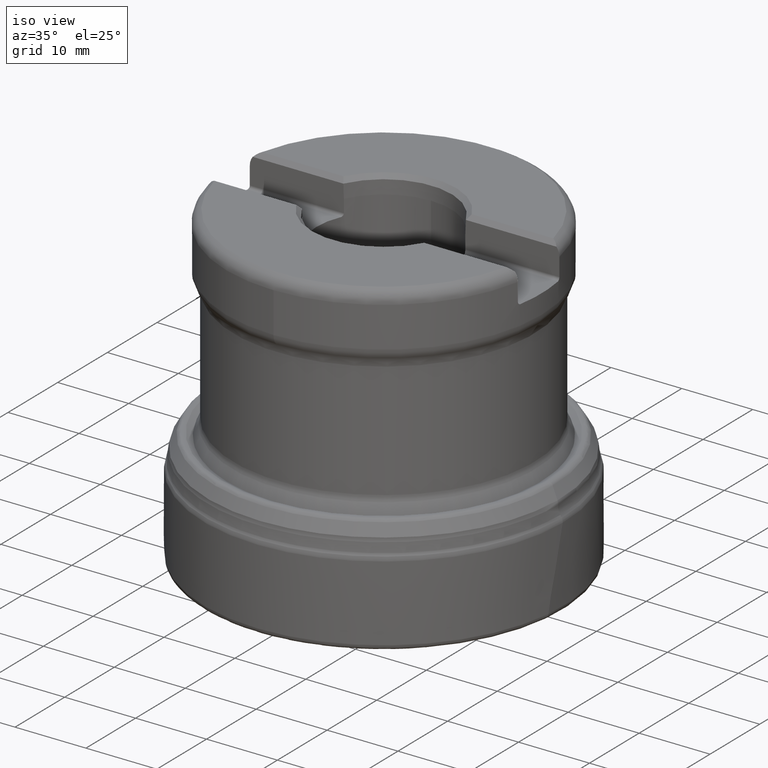
[diagram: clean part render]
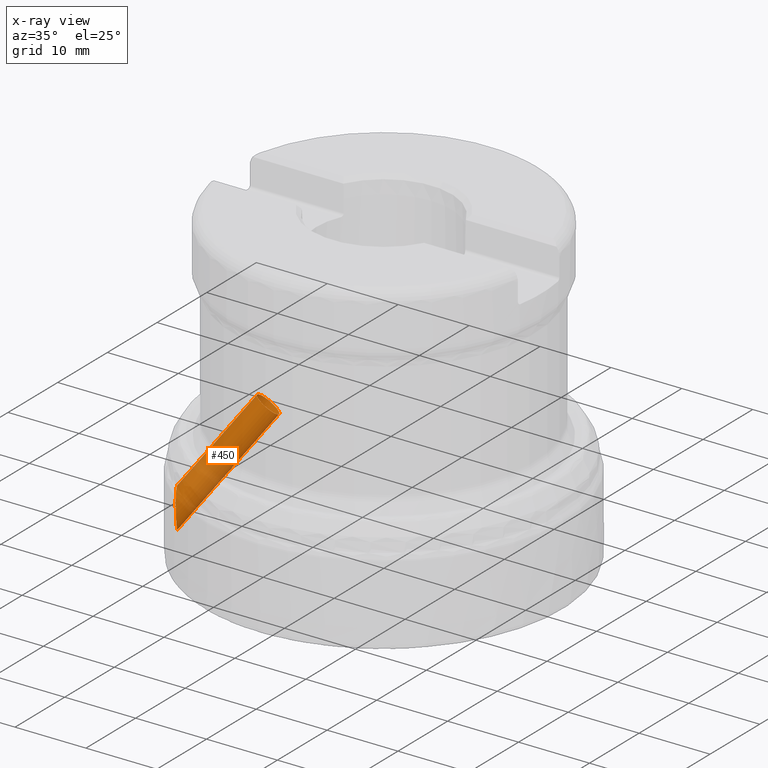
[diagram: x-ray — body ghosted, one internal face saturated and labeled with its STEP entity id]
A machine part, iso view, then the same camera in x-ray: the body is ghosted and one INTERNAL B-rep face — a face not visible from any outside direction — is saturated and labeled: STEP entity #450.
In plain terms, the highlighted cylindrical surface (bore or boss wall) has radius 1.7 mm, axis along (-0.4713, -0.446, -0.7609).
Its self-contained STEP definition (entity closure, byte-faithful):
#201=CYLINDRICAL_SURFACE('',#1563,1.7);
#325=FACE_BOUND('',#623,.T.);
#326=FACE_BOUND('',#624,.T.);
#450=ADVANCED_FACE('',(#325,#326),#201,.F.);
#623=EDGE_LOOP('',(#925));
#624=EDGE_LOOP('',(#926));
#925=ORIENTED_EDGE('',*,*,#1186,.T.);
#926=ORIENTED_EDGE('',*,*,#1259,.T.);
#1057=VERTEX_POINT('',#2911);
#1102=VERTEX_POINT('',#3248);
#1186=EDGE_CURVE('',#1057,#1057,#1409,.T.);
#1259=EDGE_CURVE('',#1102,#1102,#1339,.T.);
#1339=CIRCLE('',#1562,1.7);
#1409=B_SPLINE_CURVE_WITH_KNOTS('',3,(#2850,#2851,#2852,#2853,#2854,#2855,
#2856,#2857,#2858,#2859,#2860,#2861,#2862,#2863,#2864,#2865,#2866,#2867,
#2868,#2869,#2870,#2871,#2872,#2873,#2874,#2875,#2876,#2877,#2878,#2879,
#2880,#2881,#2882,#2883,#2884,#2885,#2886,#2887,#2888,#2889,#2890,#2891,
#2892,#2893,#2894,#2895,#2896,#2897,#2898,#2899,#2900,#2901,#2902,#2903,
#2904,#2905,#2906,#2907,#2908,#2909,#2910),.UNSPECIFIED.,.T.,.F.,(1,3,3,
3,3,3,3,3,3,3,3,3,3,3,3,3,3,3,3,3,3,3,1),(-0.0237716295053002,0.,0.0633650761916381,
0.158680737001566,0.255943375832103,0.303049578602929,0.341038622517681,
0.369706114952776,0.398572265601306,0.424937074326709,0.462591885973799,
0.518042867046791,0.599537895591249,0.683330673438352,0.75726649274674,
0.808162056744346,0.846389264061187,0.877449966051393,0.908698256938821,
0.937359074926972,0.9762283704947,1.,1.06336507619164),.UNSPECIFIED.);
#1562=AXIS2_PLACEMENT_3D('',#3247,#1851,#1852);
#1563=AXIS2_PLACEMENT_3D('',#3249,#1853,#1854);
#1851=DIRECTION('',(0.471321701591363,0.445979734865029,0.760892850340139));
#1852=DIRECTION('',(-0.609280610887265,-0.459125871983205,0.646514169119675));
#1853=DIRECTION('',(-0.471321701591363,-0.445979734865029,-0.760892850340139));
#1854=DIRECTION('',(-0.609280610887265,-0.459125871983204,0.646514169119675));
#2850=CARTESIAN_POINT('',(-22.3231330102042,-9.2575794338574,6.27598752751829));
#2851=CARTESIAN_POINT('',(-22.3443086111587,-9.17381223667797,6.00228128106467));
#2852=CARTESIAN_POINT('',(-22.345536209913,-9.13527346411715,5.71121836226466));
#2853=CARTESIAN_POINT('',(-22.333524029671,-9.1299738608903,5.42449884692209));
#2854=CARTESIAN_POINT('',(-22.3155389201931,-9.12203908616135,4.99521109324417));
#2855=CARTESIAN_POINT('',(-22.2676265717384,-9.18747086373522,4.5612076763689));
#2856=CARTESIAN_POINT('',(-22.1966015371923,-9.30876382643523,4.15510687368817));
#2857=CARTESIAN_POINT('',(-22.1242572959913,-9.43230966355619,3.74146322523699));
#2858=CARTESIAN_POINT('',(-22.0254829183673,-9.61802836957157,3.3410818063708));
#2859=CARTESIAN_POINT('',(-21.8963532066345,-9.86715233309381,3.00513374586793));
#2860=CARTESIAN_POINT('',(-21.8331317749172,-9.98912250895505,2.84065481160388));
#2861=CARTESIAN_POINT('',(-21.7613531503971,-10.1287142758691,2.68916554440673));
#2862=CARTESIAN_POINT('',(-21.6809714300773,-10.2850711435974,2.56661636245413));
#2863=CARTESIAN_POINT('',(-21.6162234535085,-10.4110175747979,2.46790223279857));
#2864=CARTESIAN_POINT('',(-21.544348330206,-10.5508127923144,2.38632984853714));
#2865=CARTESIAN_POINT('',(-21.4685333771486,-10.6979179839585,2.33722344488336));
#2866=CARTESIAN_POINT('',(-21.4112062211811,-10.8091509521912,2.30009184553872));
#2867=CARTESIAN_POINT('',(-21.3503266229931,-10.9270760249919,2.28123070700173));
#2868=CARTESIAN_POINT('',(-21.2904842160817,-11.0429642797013,2.28640085772763));
#2869=CARTESIAN_POINT('',(-21.2303777793289,-11.1593638433486,2.29159381960278));
#2870=CARTESIAN_POINT('',(-21.169748579678,-11.2767659222181,2.32166609712502));
#2871=CARTESIAN_POINT('',(-21.1147091669396,-11.3838562313102,2.37354034655007));
#2872=CARTESIAN_POINT('',(-21.0642018007483,-11.4821285272475,2.42114317480081));
#2873=CARTESIAN_POINT('',(-21.0171069691623,-11.5742610807216,2.48775615183946));
#2874=CARTESIAN_POINT('',(-20.9759178824679,-11.6557669260093,2.5660806292847));
#2875=CARTESIAN_POINT('',(-20.9173343010163,-11.7716933693804,2.67748218664644));
#2876=CARTESIAN_POINT('',(-20.8689568993143,-11.8696013475907,2.81507169163092));
#2877=CARTESIAN_POINT('',(-20.8313188384267,-11.9487406171217,2.96204664072676));
#2878=CARTESIAN_POINT('',(-20.7760531014164,-12.0649445328905,3.17785687888141));
#2879=CARTESIAN_POINT('',(-20.7416113127547,-12.1454715947159,3.42021962318482));
#2880=CARTESIAN_POINT('',(-20.7238330396499,-12.1977952504834,3.66532751508593));
#2881=CARTESIAN_POINT('',(-20.6977980637596,-12.2744194033676,4.02427002983683));
#2882=CARTESIAN_POINT('',(-20.7062630737817,-12.293797703985,4.40146092143682));
#2883=CARTESIAN_POINT('',(-20.7411102685502,-12.2677333778091,4.76683078005721));
#2884=CARTESIAN_POINT('',(-20.7769717549131,-12.2409104015574,5.1428353993492));
#2885=CARTESIAN_POINT('',(-20.8418930552258,-12.1649384446836,5.51707804303038));
#2886=CARTESIAN_POINT('',(-20.9312764708541,-12.0413811137709,5.86367461395459));
#2887=CARTESIAN_POINT('',(-21.0101519683824,-11.9323491878761,6.16952527742586));
#2888=CARTESIAN_POINT('',(-21.1101594292354,-11.7833209756237,6.4615556834395));
#2889=CARTESIAN_POINT('',(-21.2271175361146,-11.5928888478804,6.70997134171986));
#2890=CARTESIAN_POINT('',(-21.3079252453119,-11.4613170876055,6.88160459408696));
#2891=CARTESIAN_POINT('',(-21.3986145764303,-11.3069086007372,7.03585237039784));
#2892=CARTESIAN_POINT('',(-21.4947876469496,-11.1329030409357,7.15320565305619));
#2893=CARTESIAN_POINT('',(-21.5671381796154,-11.0019995055649,7.24148995618346));
#2894=CARTESIAN_POINT('',(-21.6442121105172,-10.8569196914555,7.31039992492824));
#2895=CARTESIAN_POINT('',(-21.7207436171145,-10.7054786643643,7.34745390096));
#2896=CARTESIAN_POINT('',(-21.7830005479605,-10.5822842576413,7.37759660853163));
#2897=CARTESIAN_POINT('',(-21.8463091121176,-10.4519821388953,7.38691162577592));
#2898=CARTESIAN_POINT('',(-21.905476778147,-10.3247098421904,7.37071533317468));
#2899=CARTESIAN_POINT('',(-21.9648710280786,-10.196950153375,7.3544570165082));
#2900=CARTESIAN_POINT('',(-22.0216552934339,-10.0688137884273,7.31159597161899));
#2901=CARTESIAN_POINT('',(-22.0706434262355,-9.95289887926389,7.24618615163583));
#2902=CARTESIAN_POINT('',(-22.1157643607795,-9.84613447062191,7.18593988305588));
#2903=CARTESIAN_POINT('',(-22.1555185440535,-9.74695652311911,7.10548623625515));
#2904=CARTESIAN_POINT('',(-22.1884027463277,-9.66081929035996,7.01294890898669));
#2905=CARTESIAN_POINT('',(-22.2328408596333,-9.54441761890508,6.88789846075445));
#2906=CARTESIAN_POINT('',(-22.2661434681777,-9.4483920364227,6.73779844212785));
#2907=CARTESIAN_POINT('',(-22.2896144970163,-9.37388956041493,6.57949429970353));
#2908=CARTESIAN_POINT('',(-22.3040962314267,-9.32792118476845,6.48181990449825));
#2909=CARTESIAN_POINT('',(-22.3150973284081,-9.2893672703837,6.37985311824438));
#2910=CARTESIAN_POINT('',(-22.3231330102042,-9.2575794338574,6.27598752751829));
#2911=CARTESIAN_POINT('',(-22.3231330102042,-9.2575794338574,6.27598752751829));
#3247=CARTESIAN_POINT('',(-13.8884261417758,-3.47877867878325,17.2313511867372));
#3248=CARTESIAN_POINT('',(-14.9242031802842,-4.2592926611547,18.3304252742406));
#3249=CARTESIAN_POINT('',(-13.7941618014576,-3.38958273181025,17.3835297568052));